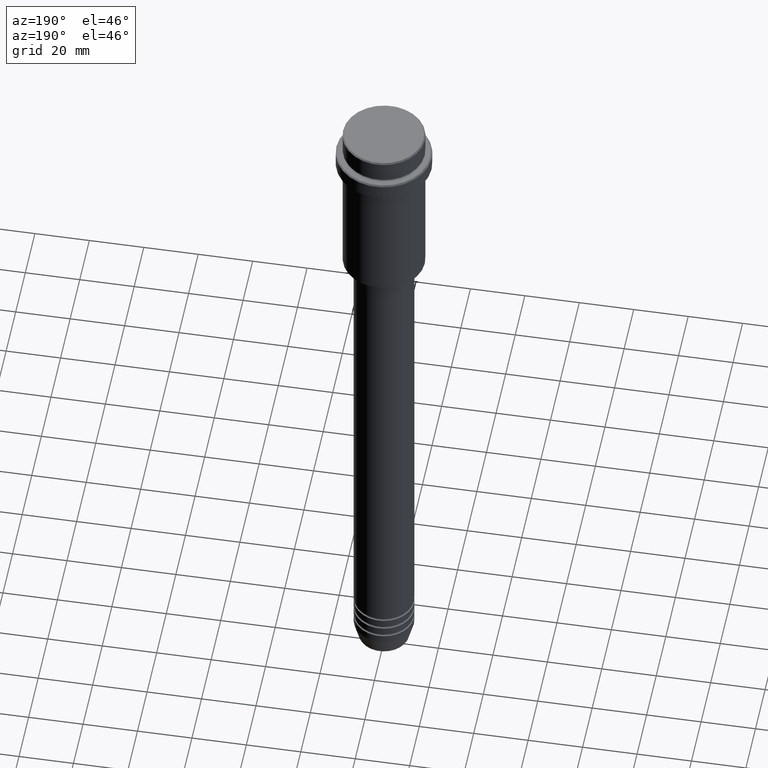
[diagram: clean part render]
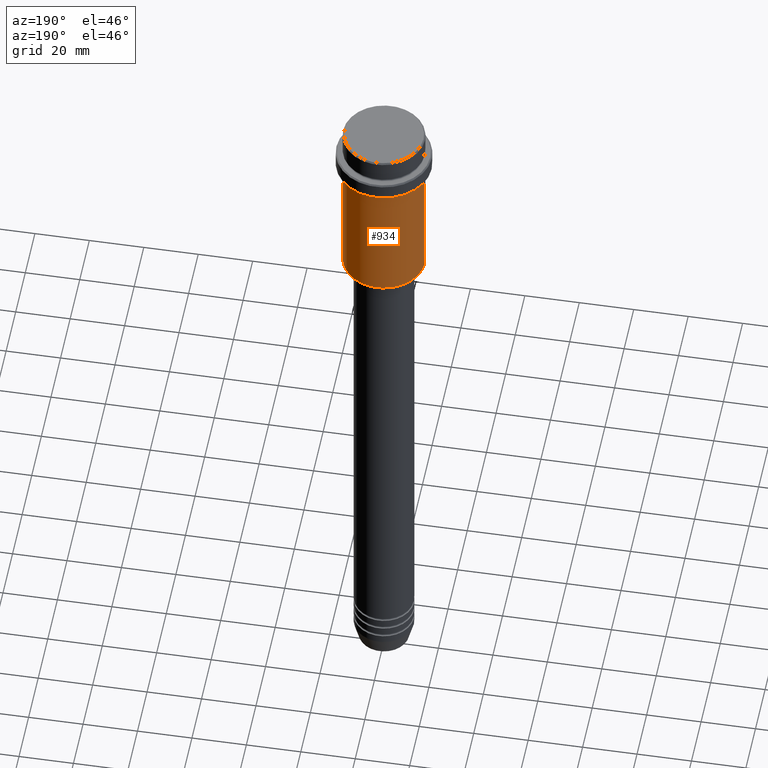
[diagram: same view with one face highlighted and labeled with its STEP entity id]
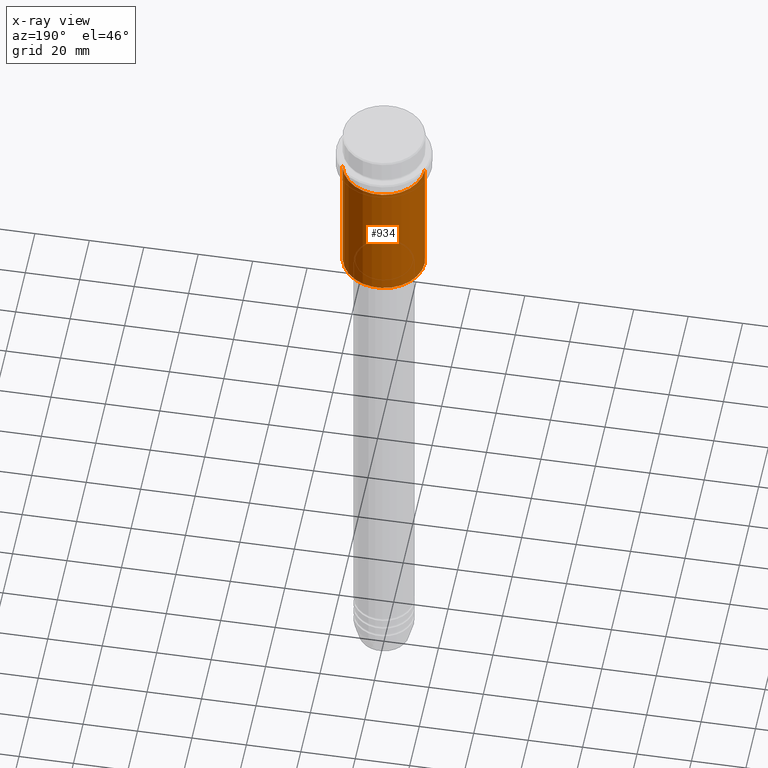
[diagram: x-ray of the same camera — body ghosted, the highlighted face saturated]
A machine part, auxiliary view. The second image highlights one B-rep face of the part: STEP entity #934.
The next image is the same camera in x-ray: the body ghosted, the highlighted face saturated — about 0% of this face is hidden behind the body in this view.
In plain terms, the highlighted cylindrical surface (partial cylindrical patch) has radius 15 mm, axis along (-0, -0, 1).
Its self-contained STEP definition (entity closure, byte-faithful):
#10 = EDGE_CURVE ( 'NONE', #1359, #714, #1235, .T. ) ;
#104 = CARTESIAN_POINT ( 'NONE',  ( -15.00000000000000000, 1.836970198721029589E-15, 0.000000000000000000 ) ) ;
#152 = ORIENTED_EDGE ( 'NONE', *, *, #10, .T. ) ;
#165 = DIRECTION ( 'NONE',  ( -0.000000000000000000, -0.000000000000000000, 1.000000000000000000 ) ) ;
#273 = ORIENTED_EDGE ( 'NONE', *, *, #857, .F. ) ;
#327 = CARTESIAN_POINT ( 'NONE',  ( 15.00000000000000000, 0.000000000000000000, -64.49999999999995737 ) ) ;
#329 = DIRECTION ( 'NONE',  ( 1.000000000000000000, 0.000000000000000000, 0.000000000000000000 ) ) ;
#343 = LINE ( 'NONE', #893, #1241 ) ;
#433 = CARTESIAN_POINT ( 'NONE',  ( 0.000000000000000000, 0.000000000000000000, 0.000000000000000000 ) ) ;
#446 = CARTESIAN_POINT ( 'NONE',  ( 0.000000000000000000, 0.000000000000000000, -16.00000000000000000 ) ) ;
#513 = EDGE_CURVE ( 'NONE', #714, #794, #1081, .T. ) ;
#538 = FACE_OUTER_BOUND ( 'NONE', #916, .T. ) ;
#594 = AXIS2_PLACEMENT_3D ( 'NONE', #757, #762, #1308 ) ;
#596 = CARTESIAN_POINT ( 'NONE',  ( 15.00000000000000178, 0.000000000000000000, -16.00000000000000000 ) ) ;
#620 = VERTEX_POINT ( 'NONE', #596 ) ;
#666 = ORIENTED_EDGE ( 'NONE', *, *, #513, .T. ) ;
#678 = CARTESIAN_POINT ( 'NONE',  ( -15.00000000000000000, 1.836970198721029589E-15, -64.49999999999995737 ) ) ;
#714 = VERTEX_POINT ( 'NONE', #678 ) ;
#757 = CARTESIAN_POINT ( 'NONE',  ( 0.000000000000000000, 0.000000000000000000, -64.49999999999995737 ) ) ;
#762 = DIRECTION ( 'NONE',  ( -0.000000000000000000, -0.000000000000000000, 1.000000000000000000 ) ) ;
#794 = VERTEX_POINT ( 'NONE', #966 ) ;
#816 = AXIS2_PLACEMENT_3D ( 'NONE', #433, #1307, #329 ) ;
#857 = EDGE_CURVE ( 'NONE', #1359, #620, #343, .T. ) ;
#893 = CARTESIAN_POINT ( 'NONE',  ( 15.00000000000000000, 0.000000000000000000, 0.000000000000000000 ) ) ;
#916 = EDGE_LOOP ( 'NONE', ( #152, #666, #1060, #273 ) ) ;
#934 = ADVANCED_FACE ( 'NONE', ( #538 ), #983, .T. ) ;
#966 = CARTESIAN_POINT ( 'NONE',  ( -15.00000000000000355, 1.836970198721029983E-15, -16.00000000000000000 ) ) ;
#967 = AXIS2_PLACEMENT_3D ( 'NONE', #446, #1319, #1000 ) ;
#983 = CYLINDRICAL_SURFACE ( 'NONE', #816, 15.00000000000000000 ) ;
#1000 = DIRECTION ( 'NONE',  ( 1.000000000000000000, 0.000000000000000000, 0.000000000000000000 ) ) ;
#1060 = ORIENTED_EDGE ( 'NONE', *, *, #1329, .F. ) ;
#1081 = LINE ( 'NONE', #104, #1291 ) ;
#1222 = DIRECTION ( 'NONE',  ( -0.000000000000000000, -0.000000000000000000, 1.000000000000000000 ) ) ;
#1235 = CIRCLE ( 'NONE', #594, 15.00000000000000000 ) ;
#1241 = VECTOR ( 'NONE', #1222, 1000.000000000000000 ) ;
#1291 = VECTOR ( 'NONE', #165, 1000.000000000000000 ) ;
#1307 = DIRECTION ( 'NONE',  ( -0.000000000000000000, -0.000000000000000000, 1.000000000000000000 ) ) ;
#1308 = DIRECTION ( 'NONE',  ( -1.000000000000000000, 0.000000000000000000, 0.000000000000000000 ) ) ;
#1319 = DIRECTION ( 'NONE',  ( -0.000000000000000000, -0.000000000000000000, 1.000000000000000000 ) ) ;
#1329 = EDGE_CURVE ( 'NONE', #620, #794, #1358, .T. ) ;
#1358 = CIRCLE ( 'NONE', #967, 15.00000000000000178 ) ;
#1359 = VERTEX_POINT ( 'NONE', #327 ) ;